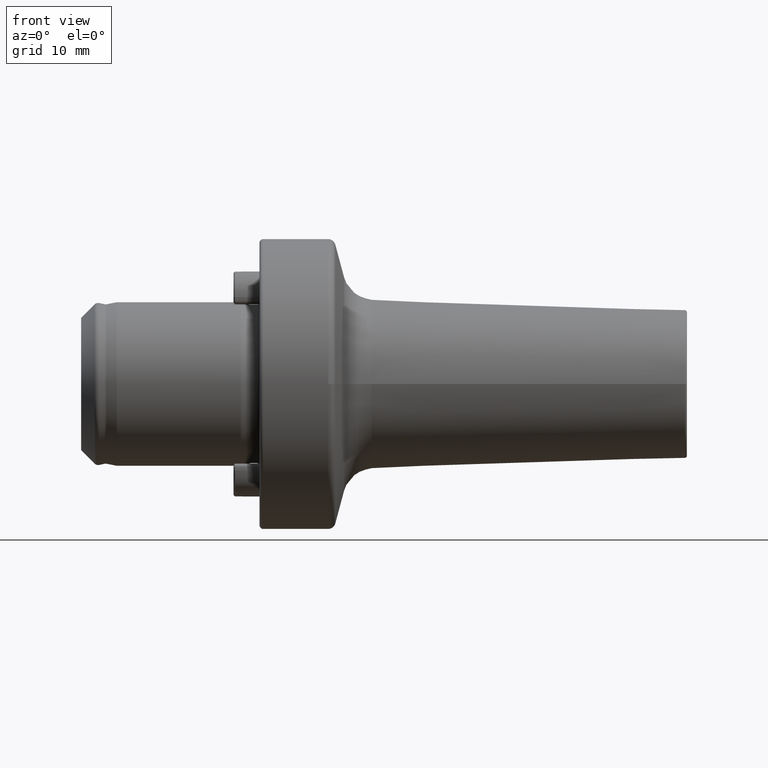
[diagram: clean part render]
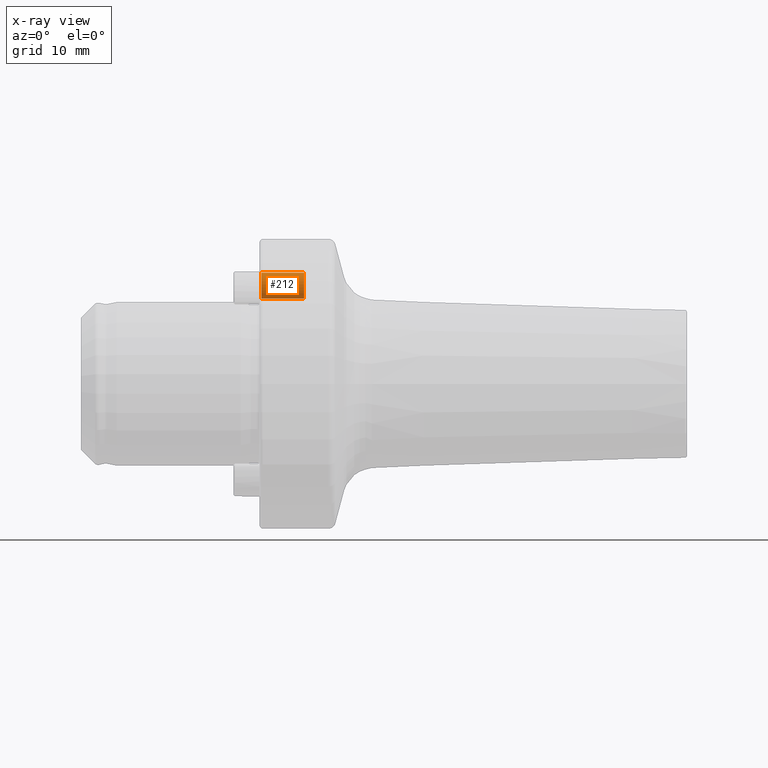
[diagram: x-ray — body ghosted, one internal face saturated and labeled with its STEP entity id]
A machine part, front view, then the same camera in x-ray: the body is ghosted and one INTERNAL B-rep face — a face not visible from any outside direction — is saturated and labeled: STEP entity #212.
In plain terms, the highlighted cylindrical surface (edge-blend (fillet) strip) has radius 1.75 mm, axis along (-1, -0, -0).
Its self-contained STEP definition (entity closure, byte-faithful):
#196 = EDGE_CURVE ( 'NONE', #2029, #313, #3146, .T. ) ;
#212 = ADVANCED_FACE ( 'NONE', ( #3089 ), #3006, .F. ) ;
#231 = AXIS2_PLACEMENT_3D ( 'NONE', #4714, #4221, #4694 ) ;
#281 = CARTESIAN_POINT ( 'NONE',  ( 0.2500000000000002200, 0.0000000000000000000, 14.94999999999999900 ) ) ;
#313 = VERTEX_POINT ( 'NONE', #4174 ) ;
#422 = DIRECTION ( 'NONE',  ( 0.0000000000000000000, 0.0000000000000000000, 1.000000000000000000 ) ) ;
#431 = DIRECTION ( 'NONE',  ( -1.000000000000000000, -0.0000000000000000000, -0.0000000000000000000 ) ) ;
#438 = CARTESIAN_POINT ( 'NONE',  ( 6.000000000000000000, 0.0000000000000000000, 13.19999999999999900 ) ) ;
#584 = CIRCLE ( 'NONE', #2078, 1.749999999999998000 ) ;
#764 = CIRCLE ( 'NONE', #2360, 1.749999999999999800 ) ;
#807 = EDGE_CURVE ( 'NONE', #2848, #1510, #887, .T. ) ;
#839 = VECTOR ( 'NONE', #1104, 1000.000000000000000 ) ;
#846 = DIRECTION ( 'NONE',  ( 0.0000000000000000000, 0.0000000000000000000, 1.000000000000000000 ) ) ;
#854 = DIRECTION ( 'NONE',  ( -1.000000000000000000, -0.0000000000000000000, -0.0000000000000000000 ) ) ;
#859 = CARTESIAN_POINT ( 'NONE',  ( 0.2500000000000002200, 0.0000000000000000000, 13.19999999999999900 ) ) ;
#887 = LINE ( 'NONE', #1165, #839 ) ;
#895 = EDGE_CURVE ( 'NONE', #313, #1510, #764, .T. ) ;
#1040 = EDGE_CURVE ( 'NONE', #2029, #2848, #584, .T. ) ;
#1104 = DIRECTION ( 'NONE',  ( -1.000000000000000000, -0.0000000000000000000, -0.0000000000000000000 ) ) ;
#1165 = CARTESIAN_POINT ( 'NONE',  ( 0.0000000000000000000, 0.0000000000000000000, 14.94999999999999800 ) ) ;
#1188 = CARTESIAN_POINT ( 'NONE',  ( 6.000000000000000000, 2.143131898507867100E-016, 11.45000000000000100 ) ) ;
#1510 = VERTEX_POINT ( 'NONE', #281 ) ;
#1966 = ORIENTED_EDGE ( 'NONE', *, *, #807, .F. ) ;
#2029 = VERTEX_POINT ( 'NONE', #1188 ) ;
#2078 = AXIS2_PLACEMENT_3D ( 'NONE', #438, #431, #422 ) ;
#2080 = ORIENTED_EDGE ( 'NONE', *, *, #895, .T. ) ;
#2084 = ORIENTED_EDGE ( 'NONE', *, *, #196, .T. ) ;
#2140 = ORIENTED_EDGE ( 'NONE', *, *, #1040, .F. ) ;
#2360 = AXIS2_PLACEMENT_3D ( 'NONE', #859, #854, #846 ) ;
#2741 = EDGE_LOOP ( 'NONE', ( #2140, #2084, #2080, #1966 ) ) ;
#2848 = VERTEX_POINT ( 'NONE', #3363 ) ;
#3006 = CYLINDRICAL_SURFACE ( 'NONE', #231, 1.749999999999998000 ) ;
#3083 = VECTOR ( 'NONE', #4703, 1000.000000000000000 ) ;
#3089 = FACE_OUTER_BOUND ( 'NONE', #2741, .T. ) ;
#3146 = LINE ( 'NONE', #4675, #3083 ) ;
#3363 = CARTESIAN_POINT ( 'NONE',  ( 6.000000000000000000, 0.0000000000000000000, 14.94999999999999800 ) ) ;
#4174 = CARTESIAN_POINT ( 'NONE',  ( 0.2500000000000002200, 2.296212748401286000E-016, 11.44999999999999900 ) ) ;
#4221 = DIRECTION ( 'NONE',  ( -1.000000000000000000, -0.0000000000000000000, -0.0000000000000000000 ) ) ;
#4675 = CARTESIAN_POINT ( 'NONE',  ( 0.0000000000000000000, 2.143131898507866600E-016, 11.45000000000000100 ) ) ;
#4694 = DIRECTION ( 'NONE',  ( 0.0000000000000000000, 0.0000000000000000000, 1.000000000000000000 ) ) ;
#4703 = DIRECTION ( 'NONE',  ( -1.000000000000000000, -0.0000000000000000000, -0.0000000000000000000 ) ) ;
#4714 = CARTESIAN_POINT ( 'NONE',  ( 0.0000000000000000000, 0.0000000000000000000, 13.19999999999999900 ) ) ;